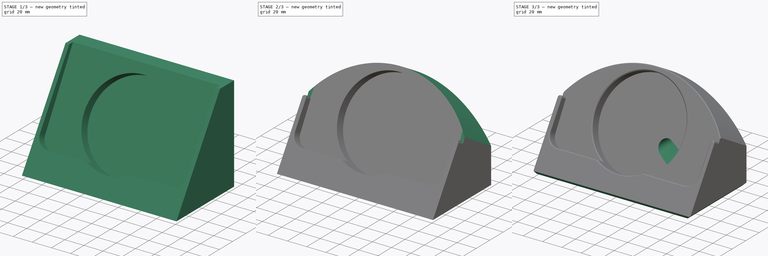
[diagram: build sequence overview — one tinted view per stage of 3, left to right]
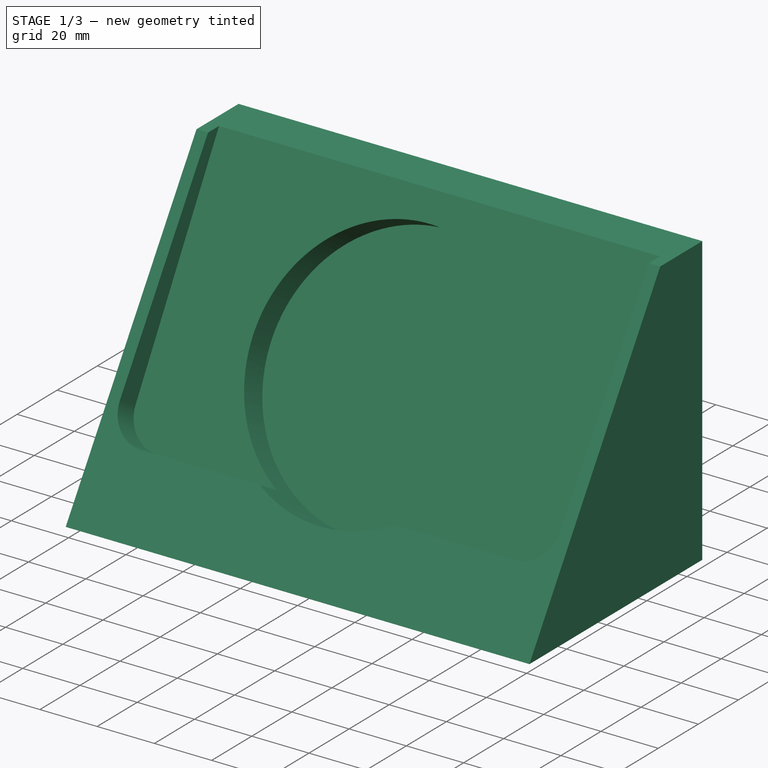
[diagram: stage 1 of 3 — iso view after this stage's code; geometry added in this stage tinted green]
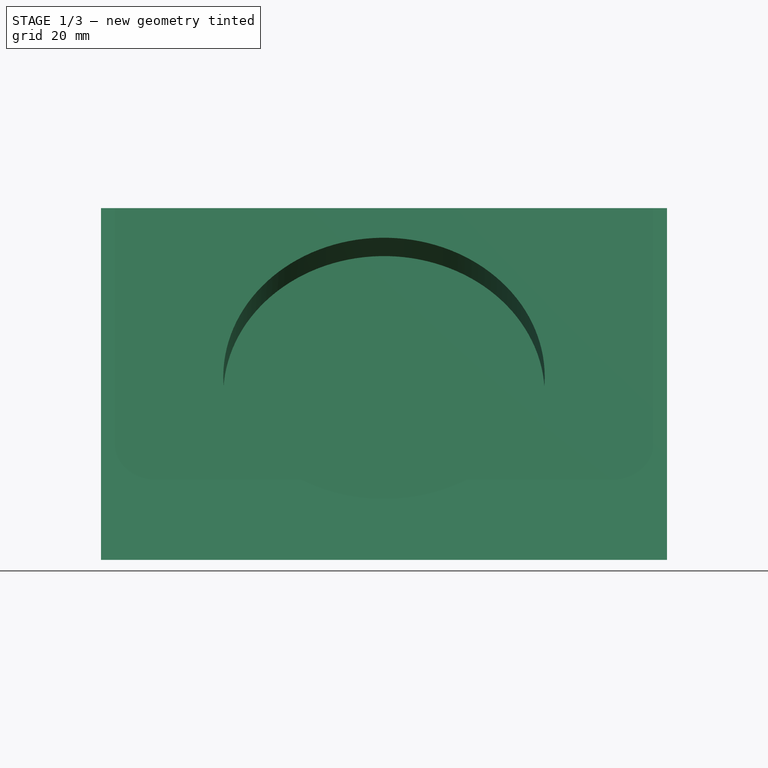
[diagram: stage 1 of 3 — front view after this stage's code; geometry added in this stage tinted green]
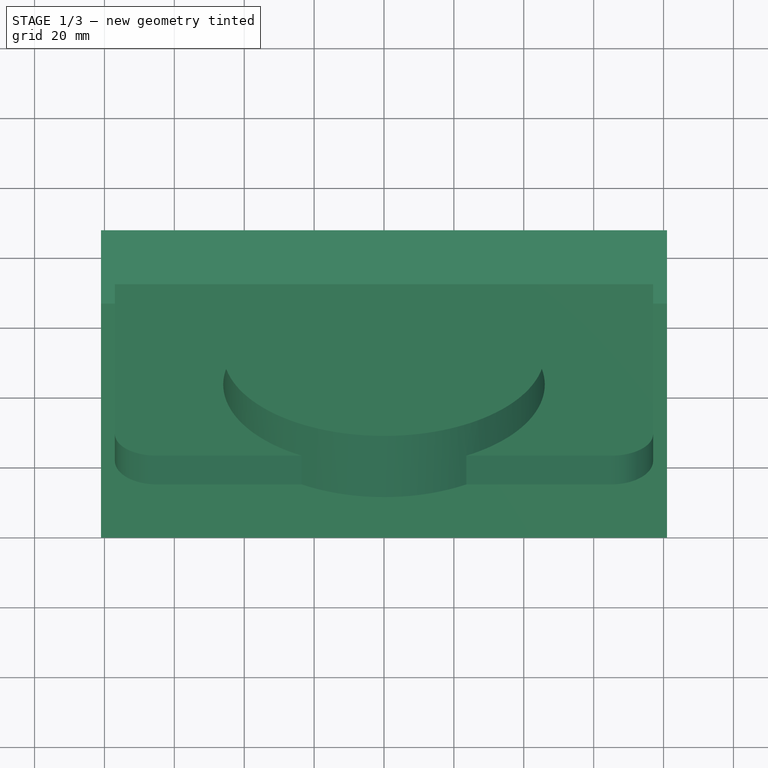
[diagram: stage 1 of 3 — top view after this stage's code; geometry added in this stage tinted green]
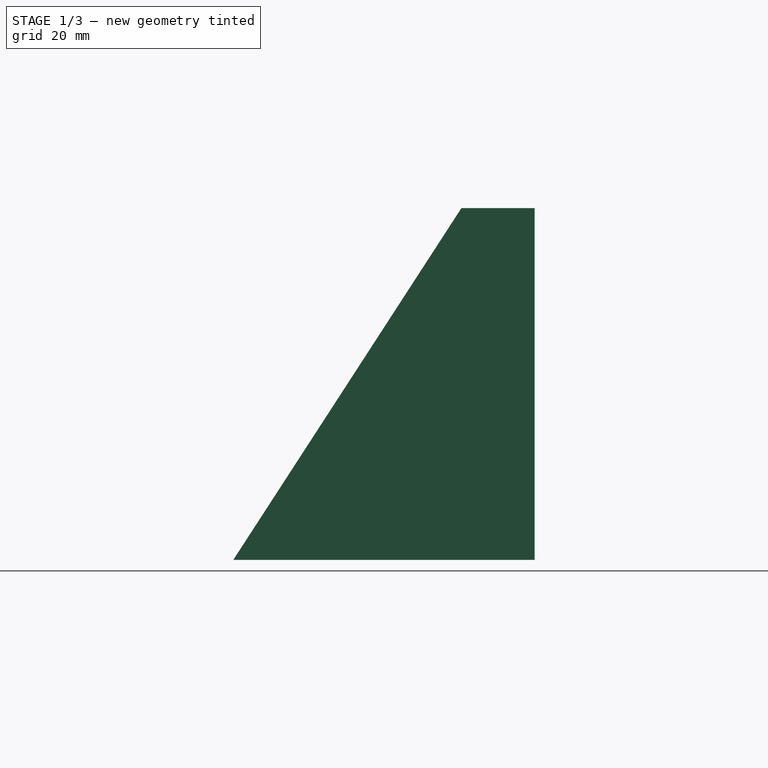
[diagram: stage 1 of 3 — right view after this stage's code; geometry added in this stage tinted green]
FCSTD DOCUMENT  (FreeCAD 1.1R38843 (Git))
Label: clock stand
License: All rights reserved
LicenseURL: http://en.wikipedia.org/wiki/All_rights_reserved
objects: Sketcher::SketchObject×8, PartDesign::Pocket×4, PartDesign::Chamfer×2, Spreadsheet::Sheet×1, PartDesign::Pad×1, PartDesign::Plane×1, PartDesign::SubtractiveLoft×1, PartDesign::Body×1
note: 42 computed .brp shape members not serialized (recipe doc carries the construction recipe); baked Part::Feature solids carry a one-line shape summary decoded from their .brp

FEATURE [Spreadsheet::Sheet] Spreadsheet  label="q"
  cells = A2='display angle; B2(display_angle)=60; A3='display chamfer; B3(display_chamfer)=3; A5='phone magsafe diameter; B5(phone_magsafe_diameter)=92; A6='phone magsafe thickness; B6(phone_magsafe_thickness)=9; A7='case margin; B7(case_margin)=3; C7='how much the back of the case potrudes; A9='phone width; B9(phone_width)=154; C9='in landscape mode; A10='phone height; B10(phone_height)=79; A11='phone thickness; B11(phone_thickness)=11; A13='charger bottom distance; B13(charger_bottom_distance)=8; A14='phone lip; B14(phone_lip)=8; A15='phone corner radius; B15(phone_corner_radius)=12; A17='stand width; B17(stand_width)==phone_width + stand_sidewall * 2; A18='stand height; B18(stand_height)==phone_height - 10; A19='stand sidewall; B19(stand_sidewall)=4; A21='usb connector width; B21(usb_connector_width)=14; A22='usb connector thickness; B22(usb_connector_thickness)=8; A23='usb bend; B23(usb_bend)=28
FEATURE [Sketcher::SketchObject] Sketch009  label="phone watch chargers001"
  ArcFitTolerance = 1e-06
  AttachmentSupport = -> [YZ_Plane001]
  FullyConstrained = true
  MakeInternals = false
  MapMode = 5
  Placement = pos=(0,0,0) rot=(0.57735,0.57735,0.57735;2.0944rad)
  expr: Constraints[18] = <<q>>.phone_magsafe_thickness
  expr: Constraints[19] = <<q>>.phone_magsafe_diameter
  expr: Constraints[23] = <<q>>.charger_bottom_distance
  expr: Constraints[7] = <<q>>.phone_height
  expr: Constraints[8] = <<q>>.phone_thickness
  expr: Constraints[9] = <<q>>.display_angle
  sketch-geometry (9):
    g0: LineSegment StartX=13.6423 StartY=23.6292 StartZ=0 EndX=53.1423 EndY=92.0452 EndZ=0
    g1: LineSegment StartX=53.1423 StartY=92.0452 StartZ=0 EndX=62.6686 EndY=86.5452 EndZ=0
    g2: LineSegment StartX=62.6686 StartY=86.5452 StartZ=0 EndX=23.1686 EndY=18.1292 EndZ=0
    g3: LineSegment StartX=23.1686 StartY=18.1292 StartZ=0 EndX=13.6423 EndY=23.6292 EndZ=0
    g4: GeomPoint [constr] X=42.9186 Y=52.3372 Z=0
    g5: LineSegment StartX=65.9186 StartY=92.1743 StartZ=0 EndX=19.9186 EndY=12.5 EndZ=0
    g6: LineSegment StartX=19.9186 StartY=12.5 StartZ=0 EndX=27.7128 EndY=8 EndZ=0
    g7: LineSegment StartX=27.7128 StartY=8 StartZ=0 EndX=73.7128 EndY=87.6743 EndZ=0
    g8: LineSegment StartX=73.7128 StartY=87.6743 StartZ=0 EndX=65.9186 EndY=92.1743 EndZ=0
  constraints (24):
    c: Coincident(g0,g1)
    c: Coincident(g1,g2)
    c: Coincident(g2,g3)
    c: Coincident(g3,g0)
    c: Perpendicular(g2,g3)
    c: Equal(g2,g0)
    c: Parallel(g2,g0)
    c: Distance(g2) = 79
    c: Distance(g3) = 11
    c: Angle(g-1,g2) = 1.0472
    c: PointOnObject(g-1,g0)
    c: Coincident(g5,g6)
    c: Coincident(g6,g7)
    c: Coincident(g7,g8)
    c: Coincident(g8,g5)
    c: Perpendicular(g6,g7)
    c: Perpendicular(g5,g6)
    c: Equal(g5,g7)
    c: Distance(g6) = 9
    c: Distance(g7) = 92
    c: Parallel(g5,g2)
    c: Symmetric(g2,g1,g4)
    c: Symmetric(g5,g5,g4)
    c: DistanceY(g-1,g6) = 8
FEATURE [Sketcher::SketchObject] Sketch
  ArcFitTolerance = 1e-06
  AttachmentSupport = -> [YZ_Plane001]
  ExternalGeometry = -> [Sketch009]
  FullyConstrained = false
  MakeInternals = false
  MapMode = 5
  Placement = pos=(0,0,0) rot=(0.57735,0.57735,0.57735;2.0944rad)
  sketch-geometry (5):
    g0: LineSegment StartX=0 StartY=0 StartZ=0 EndX=65.2589 EndY=100.635 EndZ=0
    g1: LineSegment StartX=65.2589 StartY=100.635 StartZ=0 EndX=86.2364 EndY=100.635 EndZ=0
    g2: LineSegment StartX=86.2364 StartY=100.635 StartZ=0 EndX=86.2364 EndY=0 EndZ=0
    g3: LineSegment StartX=86.2364 StartY=0 StartZ=0 EndX=0 EndY=0 EndZ=0
    g4: GeomPoint [constr] X=57.9054 Y=89.2952 Z=0
  constraints (10):
    c: Coincident(g-1,g0)
    c: Coincident(g0,g1)
    c: Horizontal(g1)
    c: Coincident(g1,g2)
    c: PointOnObject(g2,g-1)
    c: Vertical(g2)
    c: Coincident(g2,g3)
    c: Coincident(g3,g0)
    c: Symmetric(g-3,g-3,g4)
    c: PointOnObject(g4,g0)
FEATURE [PartDesign::Pad] Pad
  Direction = (1,0,0)
  Length = 162
  Length2 = 10
  Midplane = true
  Placement = pos=(0,0,0) rot=(1,1,1;2.0944rad)
  Profile = -> Sketch
  ReferenceAxis = -> Sketch [N_Axis]
  Suppressed = false
  Type = 0
  expr: Length = <<q>>.stand_width
FEATURE [PartDesign::Plane] DatumPlane
  AttachmentSupport = -> [Sketch009]
  Length = 194.249
  MapMode = 7
  Placement = pos=(0,53.1423,92.0452) rot=(1,0,0;1.0472rad)
  ResizeMode = 0
  Width = 192.747
FEATURE [Sketcher::SketchObject] Sketch010
  ArcFitTolerance = 1e-06
  AttachmentSupport = -> [DatumPlane]
  FullyConstrained = true
  MakeInternals = false
  MapMode = 5
  Placement = pos=(0,53.1423,92.0452) rot=(1,0,0;1.0472rad)
  expr: Constraints[11] = <<q>>.phone_height
  expr: Constraints[12] = <<q>>.phone_corner_radius
  expr: Constraints[16] = <<q>>.phone_height * 2
  expr: Constraints[18] = <<q>>.phone_width
  sketch-geometry (8):
    g0: LineSegment StartX=-77 StartY=79 StartZ=0 EndX=-77 EndY=-67 EndZ=0
    g1: LineSegment StartX=-65 StartY=-79 StartZ=0 EndX=65 EndY=-79 EndZ=0
    g2: LineSegment StartX=77 StartY=-67 StartZ=0 EndX=77 EndY=79 EndZ=0
    g3: ArcOfCircle CenterX=-65 CenterY=-67 CenterZ=0 NormalX=0 NormalY=0 NormalZ=1 AngleXU=0 Radius=12 StartAngle=3.14159 EndAngle=4.71239
    g4: GeomPoint [constr] X=-77 Y=-79 Z=0
    g5: ArcOfCircle CenterX=65 CenterY=-67 CenterZ=0 NormalX=0 NormalY=0 NormalZ=1 AngleXU=0 Radius=12 StartAngle=4.71239 EndAngle=6.28319
    g6: GeomPoint [constr] X=77 Y=-79 Z=0
    g7: LineSegment StartX=77 StartY=79 StartZ=0 EndX=-77 EndY=79 EndZ=0
  constraints (19):
    c: Vertical(g0)
    c: Vertical(g2)
    c: Horizontal(g1)
    c: PointOnObject(g4,g0)
    c: PointOnObject(g4,g1)
    c: Tangent(g0,g3) = -1.5708
    c: Tangent(g1,g3) = -1.5708
    c: PointOnObject(g6,g1)
    c: PointOnObject(g6,g2)
    c: Tangent(g1,g5) = -1.5708
    c: Tangent(g2,g5) = -1.5708
    c: DistanceY(g1,g-1) = 79
    c: Radius(g3) = 12
    c: Coincident(g7,g2)
    c: Coincident(g7,g0)
    c: Horizontal(g7)
    c: DistanceY(g1,g2) = 158
    c: Symmetric(g5,g3,g-2)
    c: DistanceX(g0,g2) = 154
FEATURE [PartDesign::Pocket] Pocket
  BaseFeature = -> Pad
  Direction = (0,0.866025,-0.5)
  Length = 11
  Length2 = 5
  Placement = pos=(0,0,0) rot=(1,1,1;2.0944rad)
  Profile = -> Sketch010
  ReferenceAxis = -> Sketch010 [N_Axis]
  Suppressed = false
  Type = 0
  expr: Length = <<q>>.phone_thickness
FEATURE [Sketcher::SketchObject] Sketch011
  ArcFitTolerance = 1e-06
  AttachmentOffset = pos=(0,0,0) rot=(0,0,1;1.5708rad)
  AttachmentSupport = -> [Pocket]
  ExternalGeometry = -> [Pocket]
  FullyConstrained = true
  MakeInternals = false
  MapMode = 5
  Placement = pos=(0,9.52628,-5.5) rot=(1,0,0;1.0472rad)
  expr: Constraints[1] = <<q>>.phone_magsafe_diameter
  expr: Constraints[2] = <<q>>.phone_height / 2
  sketch-geometry (1):
    g0: Circle CenterX=0 CenterY=66.7846 CenterZ=0 NormalX=0 NormalY=0 NormalZ=1 AngleXU=0 Radius=46
  constraints (3):
    c: PointOnObject(g0,g-2)
    c: Diameter(g0) = 92
    c: DistanceY(g-3,g0) = 39.5
FEATURE [PartDesign::Pocket] Pocket001
  BaseFeature = -> Pocket
  Direction = (0,0.866025,-0.5)
  Length = 21
  Length2 = 5
  Midplane = true
  Placement = pos=(0,0,0) rot=(1,1,1;2.0944rad)
  Profile = -> Sketch011
  ReferenceAxis = -> Sketch011 [N_Axis]
  Suppressed = false
  Type = 0
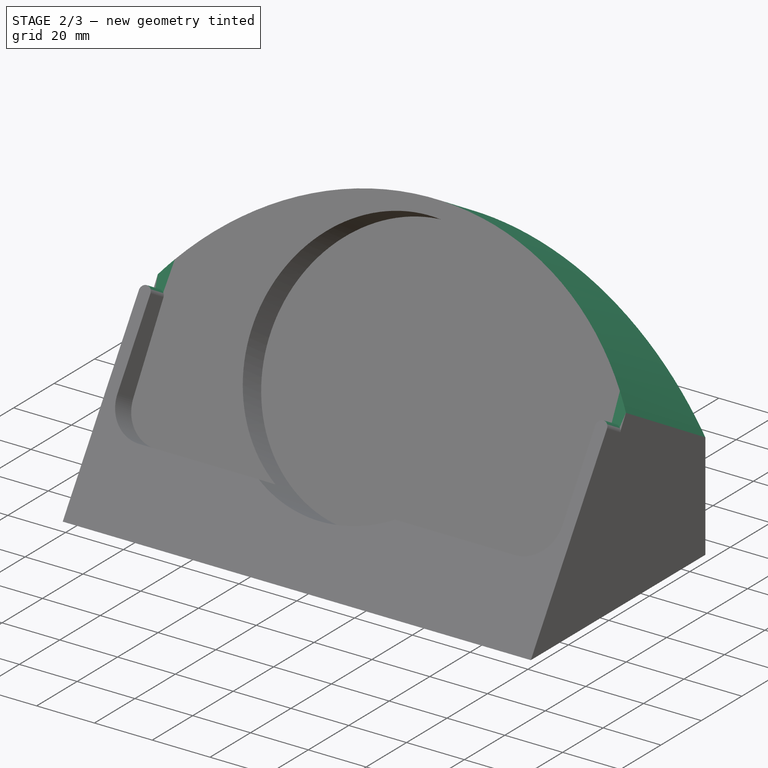
[diagram: stage 2 of 3 — iso view after this stage's code; geometry added in this stage tinted green]
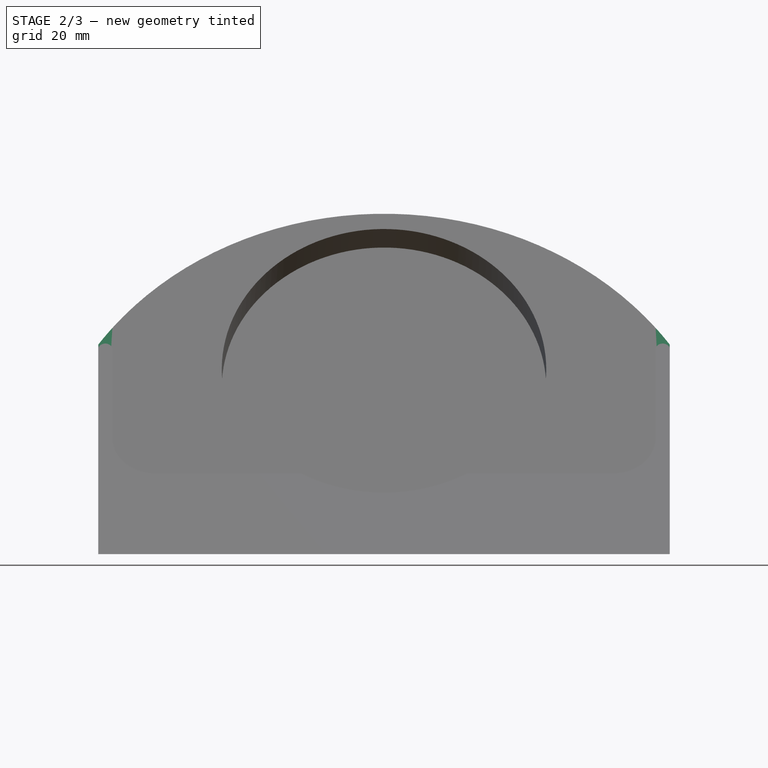
[diagram: stage 2 of 3 — front view after this stage's code; geometry added in this stage tinted green]
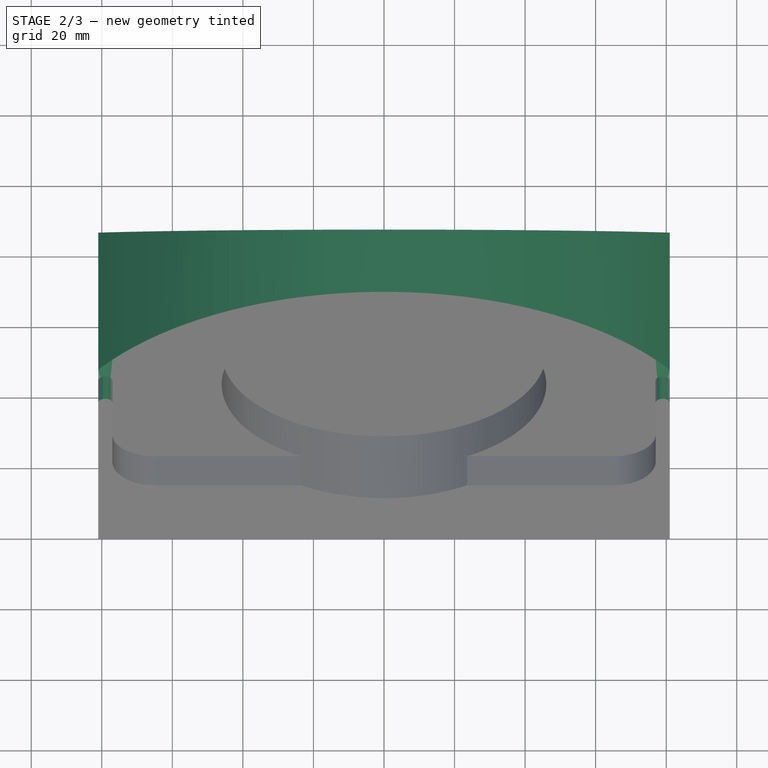
[diagram: stage 2 of 3 — top view after this stage's code; geometry added in this stage tinted green]
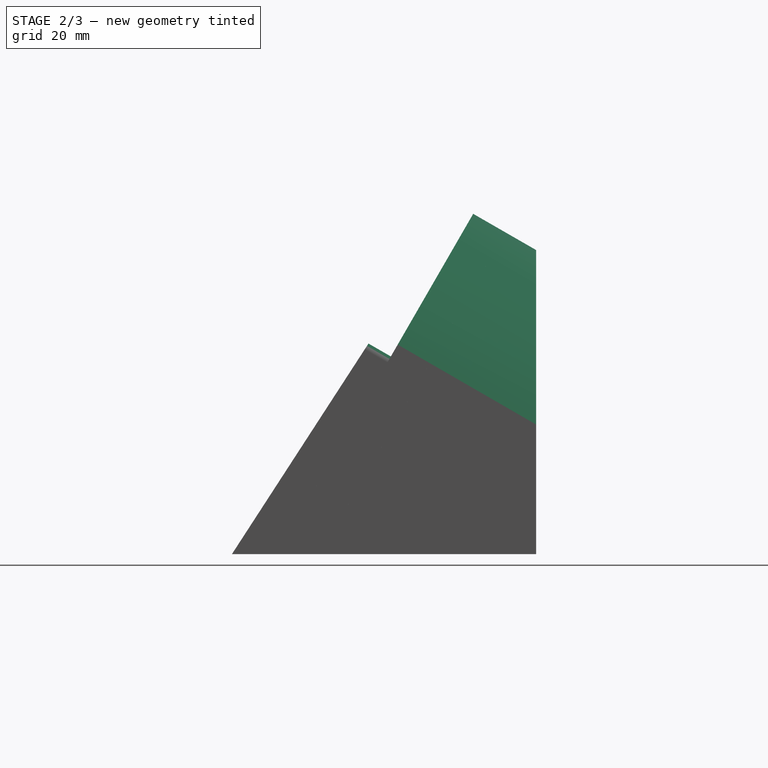
[diagram: stage 2 of 3 — right view after this stage's code; geometry added in this stage tinted green]
FEATURE [Sketcher::SketchObject] Sketch012
  ArcFitTolerance = 1e-06
  AttachmentOffset = pos=(0,0,11) rot=(0,0,1;1.5708rad)
  AttachmentSupport = -> [Pocket001]
  ExternalGeometry = -> [Pocket001]
  FullyConstrained = true
  MakeInternals = false
  MapMode = 5
  Placement = pos=(-7e-16,1.42e-14,-1.07e-14) rot=(1,0,0;1.0472rad)
  expr: Constraints[3] = <<q>>.phone_magsafe_diameter / 2 + 5
  sketch-geometry (5):
    g0: ArcOfCircle CenterX=6.2e-15 CenterY=19.7846 CenterZ=0 NormalX=0 NormalY=0 NormalZ=1 AngleXU=0 Radius=98 StartAngle=0.0766055 EndAngle=3.06499
    g1: GeomPoint [constr] X=0 Y=117.785 Z=0
    g2: LineSegment StartX=97.7126 StartY=27.2846 StartZ=0 EndX=97.7126 EndY=157.285 EndZ=0
    g3: LineSegment StartX=97.7126 StartY=157.285 StartZ=0 EndX=-97.7126 EndY=157.285 EndZ=0
    g4: LineSegment StartX=-97.7126 StartY=157.285 StartZ=0 EndX=-97.7126 EndY=27.2846 EndZ=0
  constraints (14):
    c: Horizontal(g-3,g0)
    c: PointOnObject(g1,g0)
    c: PointOnObject(g1,g-2)
    c: DistanceY(g-3,g1) = 51
    c: Symmetric(g0,g0,g-2)
    c: Radius(g0) = 98
    c: Coincident(g0,g2)
    c: Coincident(g2,g3)
    c: Horizontal(g3)
    c: Coincident(g3,g4)
    c: Coincident(g4,g0)
    c: Vertical(g4)
    c: DistanceY(g2,g2) = 130
    c: Vertical(g2)
FEATURE [PartDesign::Pocket] Pocket002
  BaseFeature = -> Pocket001
  Direction = (0,0.866025,-0.5)
  Length = 5
  Length2 = 5
  Placement = pos=(0,0,0) rot=(1,1,1;2.0944rad)
  Profile = -> Sketch012
  ReferenceAxis = -> Sketch012 [N_Axis]
  Suppressed = false
  Type = 1
FEATURE [Sketcher::SketchObject] Sketch013
  ArcFitTolerance = 1e-06
  AttachmentOffset = pos=(0,0,-1) rot=(0,0,1;1.5708rad)
  AttachmentSupport = -> [Pocket002]
  ExternalGeometry = -> [Pocket002,Sketch009]
  FullyConstrained = false
  MakeInternals = false
  MapMode = 5
  Placement = pos=(1e-16,10.3923,-6) rot=(1,0,0;1.0472rad)
  sketch-geometry (5):
    g0: LineSegment [constr] StartX=-3.16e-14 StartY=66.7846 StartZ=0 EndX=38.2121 EndY=41.1753 EndZ=0
    g1: ArcOfCircle CenterX=67.5622 CenterY=21.5052 CenterZ=0 NormalX=0 NormalY=0 NormalZ=1 AngleXU=0 Radius=9 StartAngle=4.12195 EndAngle=7.26355
    g2: ArcOfCircle CenterX=26.5823 CenterY=48.9695 CenterZ=0 NormalX=0 NormalY=0 NormalZ=1 AngleXU=0 Radius=9 StartAngle=0.98036 EndAngle=4.12195
    g3: LineSegment StartX=62.5517 StartY=14.029 StartZ=0 EndX=21.5718 EndY=41.4932 EndZ=0
    g4: LineSegment StartX=72.5727 StartY=28.9815 StartZ=0 EndX=31.5928 EndY=56.4457 EndZ=0
  constraints (11):
    c: Coincident(g0,g-3)
    c: PointOnObject(g0,g-3)
    c: Tangent(g1,g3) = 1.5708
    c: Tangent(g1,g4) = -1.5708
    c: Tangent(g2,g3) = 1.5708
    c: Tangent(g2,g4) = -1.5708
    c: Equal(g1,g2)
    c: Radius(g1) = 9
    c: PointOnObject(g2,g0)
    c: Parallel(g0,g4)
    c: Distance(g2,g0) = 14
FEATURE [Sketcher::SketchObject] Sketch016
  ArcFitTolerance = 1e-06
  AttachmentOffset = pos=(0,0,0) rot=(0,0,1;1.5708rad)
  AttachmentSupport = -> [Pocket002]
  ExternalGeometry = -> [Pocket002]
  FullyConstrained = false
  MakeInternals = false
  MapMode = 5
  Placement = pos=(0,9.52628,-5.5) rot=(1,0,0;1.0472rad)
  sketch-geometry (8):
    g0: ArcOfCircle CenterX=79 CenterY=69.0708 CenterZ=0 NormalX=0 NormalY=0 NormalZ=1 AngleXU=0 Radius=2 StartAngle=-5.56613e-11 EndAngle=3.14159
    g1: ArcOfCircle CenterX=-79 CenterY=69.0708 CenterZ=0 NormalX=0 NormalY=0 NormalZ=1 AngleXU=0 Radius=2 StartAngle=0 EndAngle=3.14159
    g2: LineSegment StartX=-77 StartY=69.0708 StartZ=0 EndX=-77 EndY=85.0708 EndZ=0
    g3: LineSegment StartX=-77 StartY=85.0708 StartZ=0 EndX=-81 EndY=85.0708 EndZ=0
    g4: LineSegment StartX=-81 StartY=85.0708 StartZ=0 EndX=-81 EndY=69.0708 EndZ=0
    g5: LineSegment StartX=81 StartY=69.0708 StartZ=0 EndX=81 EndY=84.0708 EndZ=0
    g6: LineSegment StartX=81 StartY=84.0708 StartZ=0 EndX=77 EndY=84.0708 EndZ=0
    g7: LineSegment StartX=77 StartY=84.0708 StartZ=0 EndX=77 EndY=69.0708 EndZ=0
  constraints (24):
    c: PointOnObject(g0,g-5)
    c: Horizontal(g0,g0)
    c: Tangent(g0,g-6) = -1.5708
    c: PointOnObject(g1,g-3)
    c: PointOnObject(g1,g-4)
    c: Horizontal(g1,g0)
    c: Horizontal(g1,g1)
    c: Horizontal(g1,g1)
    c: Coincident(g1,g2)
    c: Coincident(g2,g3)
    c: Horizontal(g3)
    c: Coincident(g3,g4)
    c: Coincident(g4,g1)
    c: Vertical(g2)
    c: Vertical(g4)
    c: DistanceY(g2,g2) = 16
    c: Coincident(g0,g5)
    c: Coincident(g5,g6)
    c: Coincident(g6,g7)
    c: Coincident(g7,g0)
    c: Vertical(g5)
    c: Vertical(g7)
    c: Horizontal(g6)
    c: DistanceY(g5,g5) = 15
FEATURE [PartDesign::Pocket] Pocket003
  BaseFeature = -> Pocket002
  Direction = (0,0.866025,-0.5)
  Length = 10
  Length2 = 5
  Placement = pos=(0,0,0) rot=(1,1,1;2.0944rad)
  Profile = -> Sketch016
  ReferenceAxis = -> Sketch016 [N_Axis]
  Reversed = true
  Suppressed = false
  Type = 0
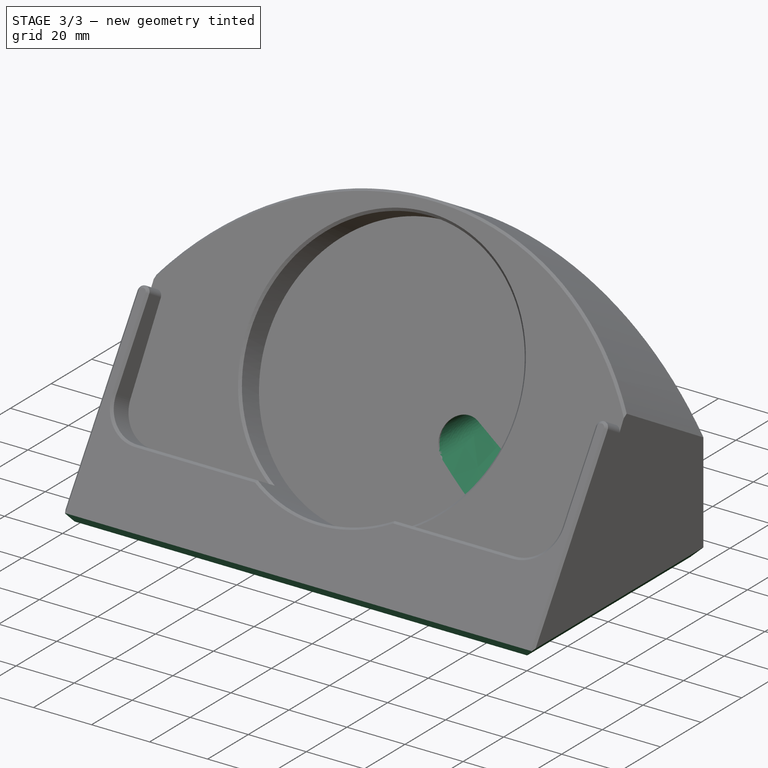
[diagram: stage 3 of 3 — iso view after this stage's code; geometry added in this stage tinted green]
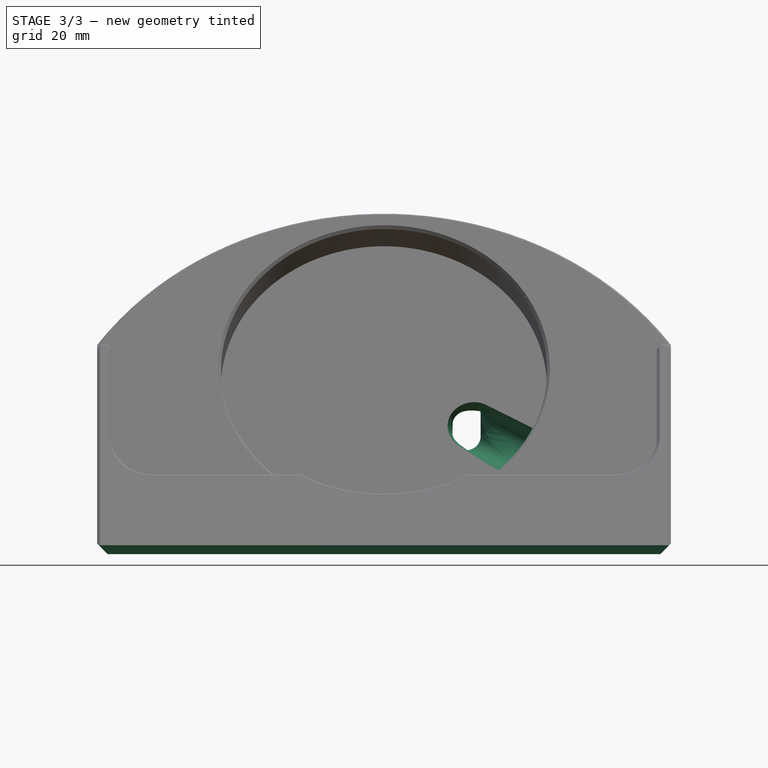
[diagram: stage 3 of 3 — front view after this stage's code; geometry added in this stage tinted green]
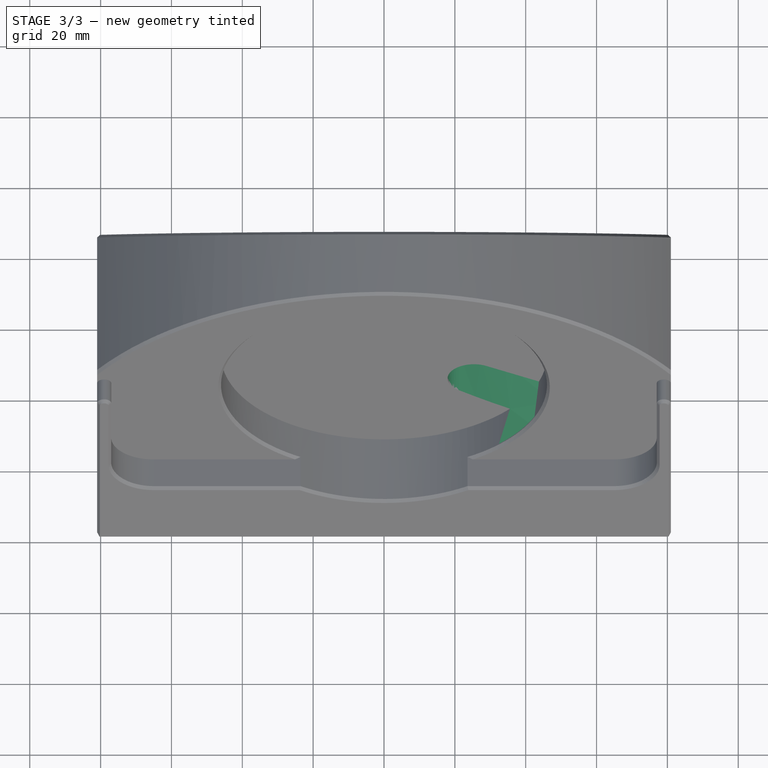
[diagram: stage 3 of 3 — top view after this stage's code; geometry added in this stage tinted green]
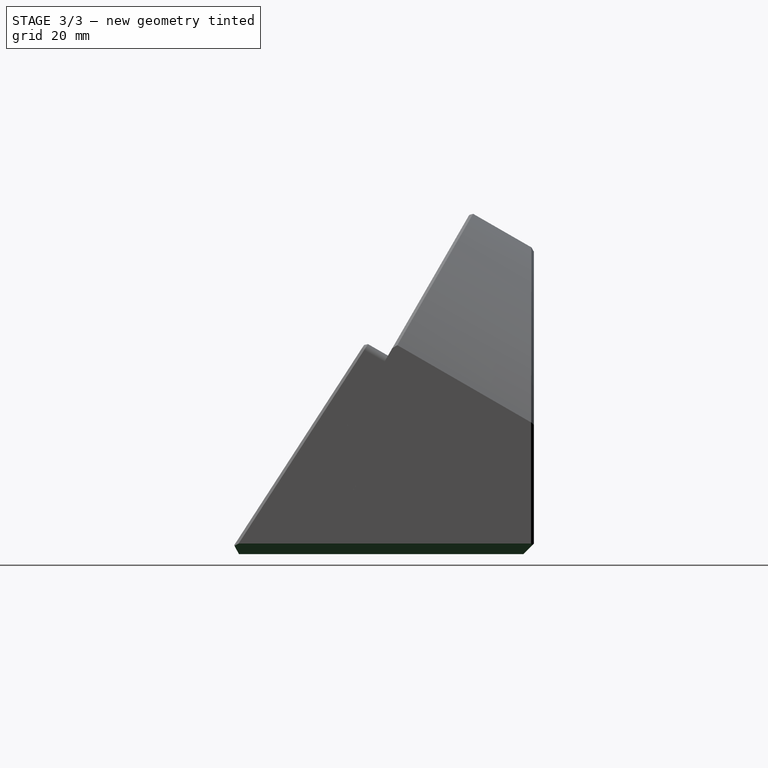
[diagram: stage 3 of 3 — right view after this stage's code; geometry added in this stage tinted green]
FEATURE [Sketcher::SketchObject] Sketch017
  ArcFitTolerance = 1e-06
  AttachmentSupport = -> [Pocket003]
  FullyConstrained = false
  MakeInternals = false
  MapMode = 5
  Placement = pos=(1.9e-14,86.2364,0) rot=(0.57735,0.57735,0.57735;4.18879rad)
  sketch-geometry (4):
    g0: ArcOfCircle CenterX=33.3745 CenterY=23.2889 CenterZ=0 NormalX=0 NormalY=0 NormalZ=1 AngleXU=0 Radius=4 StartAngle=1.5708 EndAngle=4.71239
    g1: ArcOfCircle CenterX=39.3745 CenterY=23.2889 CenterZ=0 NormalX=0 NormalY=0 NormalZ=1 AngleXU=0 Radius=4 StartAngle=4.71239 EndAngle=7.85398
    g2: LineSegment StartX=33.3745 StartY=27.2889 StartZ=0 EndX=39.3745 EndY=27.2889 EndZ=0
    g3: LineSegment StartX=33.3745 StartY=19.2889 StartZ=0 EndX=39.3745 EndY=19.2889 EndZ=0
  constraints (8):
    c: Tangent(g0,g2) = 1.5708
    c: Tangent(g0,g3) = -1.5708
    c: Tangent(g1,g2) = 1.5708
    c: Tangent(g1,g3) = -1.5708
    c: Equal(g0,g1)
    c: Horizontal(g3)
    c: Distance(g0,g1) = 6
    c: Radius(g0) = 4
FEATURE [PartDesign::SubtractiveLoft] SubtractiveLoft
  BaseFeature = -> Pocket003
  Closed = false
  Placement = pos=(0,0,0) rot=(1,1,1;2.0944rad)
  Profile = -> Sketch013
  Ruled = true
  Sections = -> [Sketch017]
  Suppressed = false
FEATURE [PartDesign::Chamfer] Chamfer
  Angle = 45
  Base = -> SubtractiveLoft [Face13]
  BaseFeature = -> SubtractiveLoft
  ChamferType = 0
  FlipDirection = false
  Placement = pos=(0,0,0) rot=(1,1,1;2.0944rad)
  Size = 3
  Size2 = 1
  SupportTransform = false
  Suppressed = false
  UseAllEdges = false
FEATURE [PartDesign::Chamfer] Chamfer001
  Angle = 45
  Base = -> Chamfer [Edge57,Edge35,Edge17,Edge65,Edge48,Edge1,Edge8,Edge11]
  BaseFeature = -> Chamfer
  ChamferType = 0
  FlipDirection = false
  Placement = pos=(0,0,0) rot=(1,1,1;2.0944rad)
  Size = 0.8
  Size2 = 1
  SupportTransform = false
  Suppressed = false
  UseAllEdges = false
FEATURE [PartDesign::Body] Body001
  AllowCompound = false
  Group = -> [Sketch009,Sketch,Pad,DatumPlane,Sketch010,Pocket,Sketch011,Pocket001,Sketch012,Pocket002,Sketch013,Sketch016,Pocket003,Sketch017,SubtractiveLoft,Chamfer,Chamfer001]
  Origin = -> Origin001
  Tip = -> Chamfer001
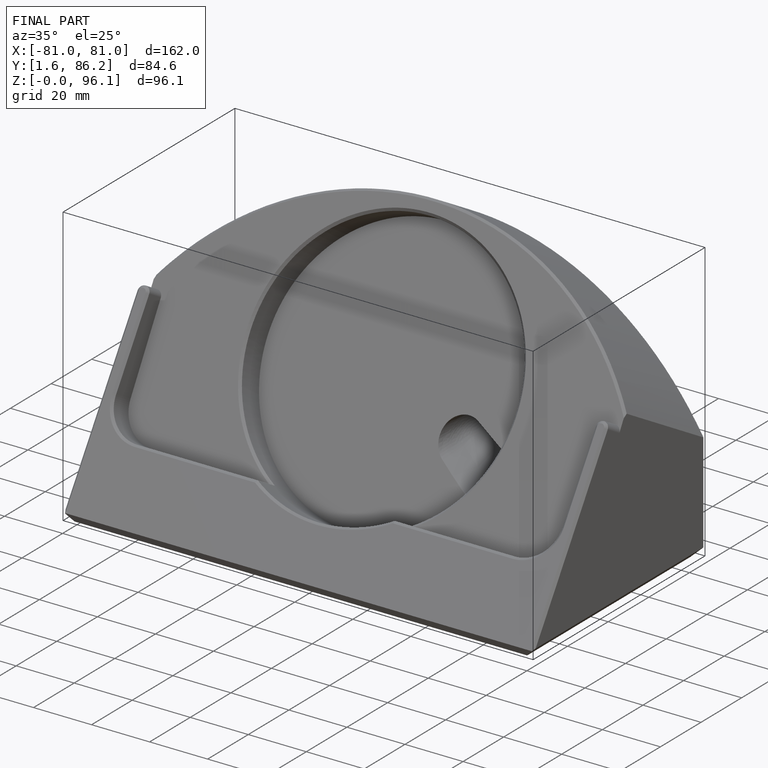
[diagram: finished part — iso view with bounding-box wireframe]
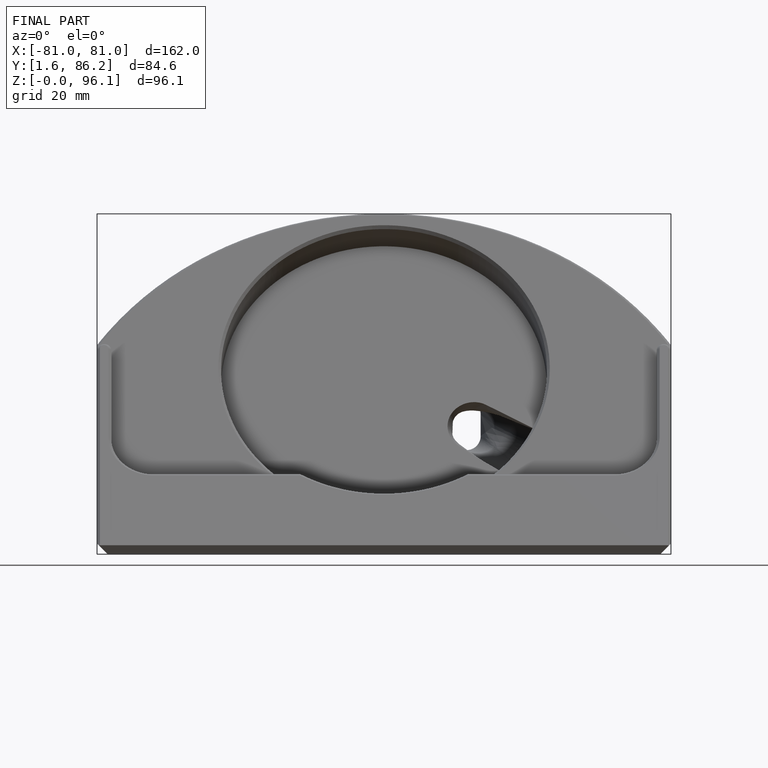
[diagram: finished part — front view with bounding-box wireframe]
